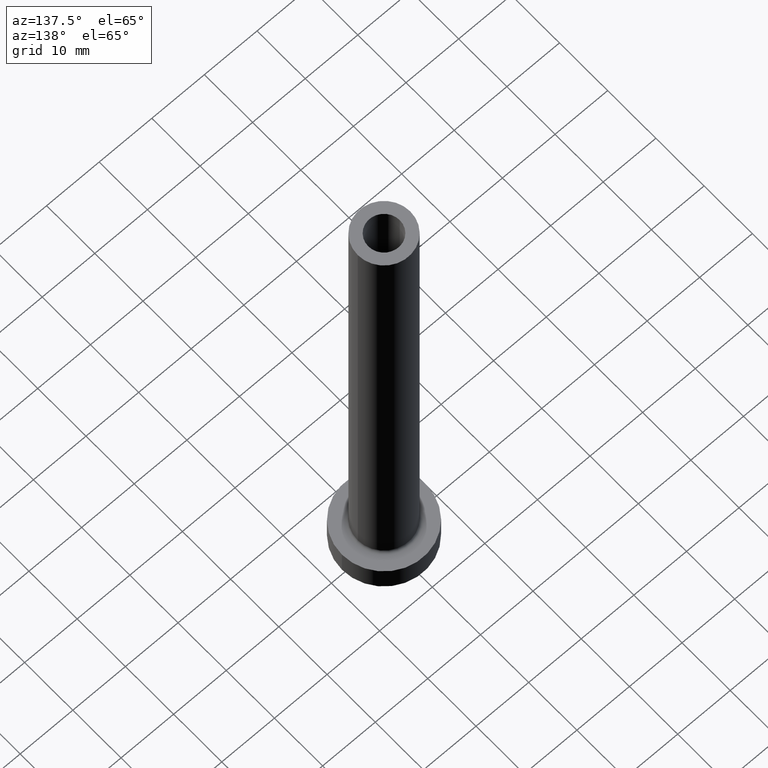
[diagram: clean part render]
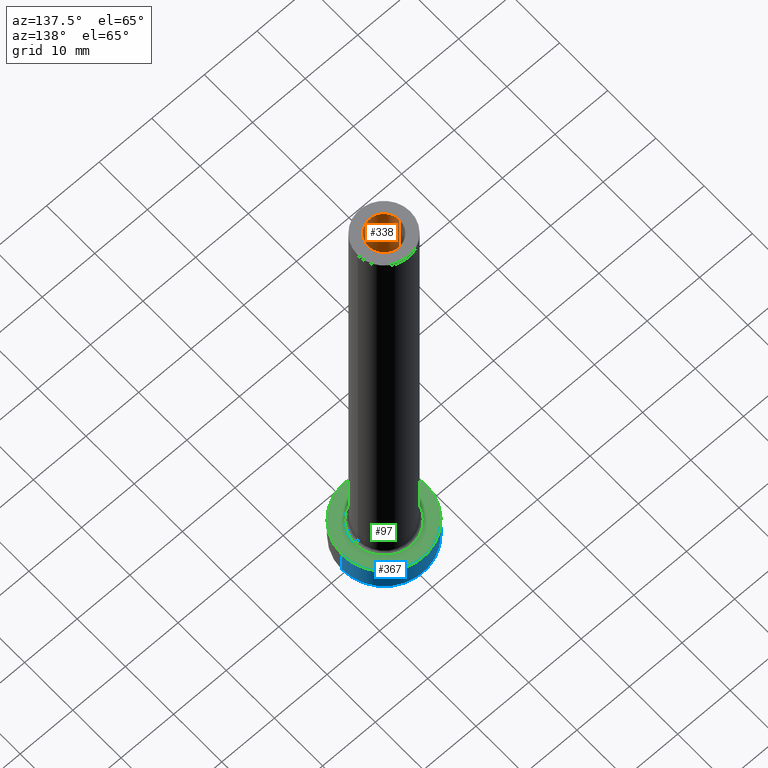
[diagram: same view with three faces highlighted in distinct colors, each labeled with its STEP entity id]
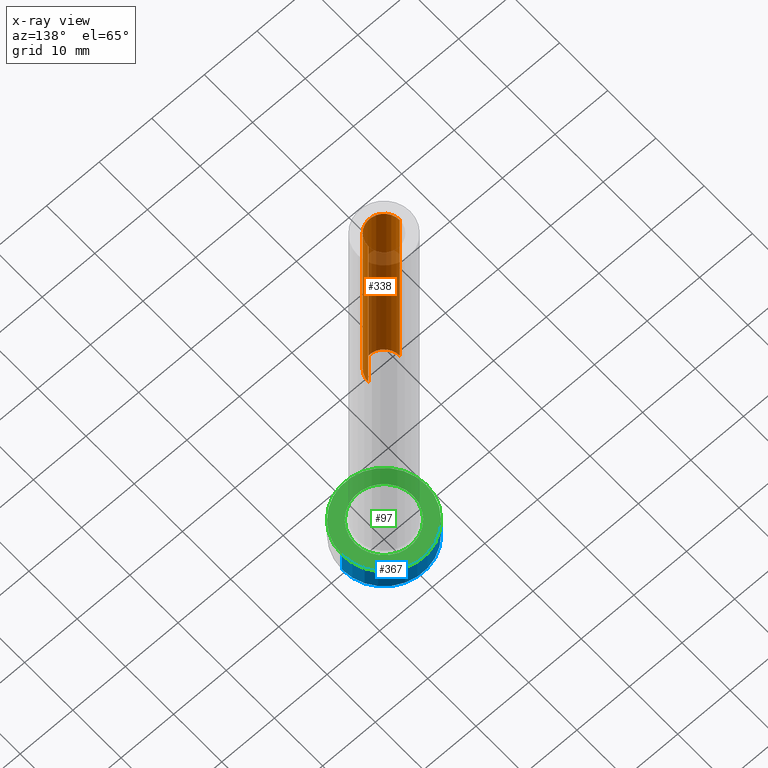
[diagram: x-ray of the same camera — body ghosted, the three highlighted faces saturated]
A machine part, auxiliary view with three faces highlighted in distinct colors.
The next image is the same camera in x-ray (body ghosted, the three faces saturated) — at least one of them is partly hidden behind the body in this view.
Their STEP definitions:

[orange] entity #338 — the highlighted cylindrical surface (edge-blend (fillet) strip) has radius 3 mm, axis along (0, 0, -1).
#8 = CIRCLE ( 'NONE', #15, 3.000000000000000444 ) ;
#14 = CARTESIAN_POINT ( 'NONE',  ( -3.000000000000000444, 0.000000000000000000, 100.0000000000000000 ) ) ;
#15 = AXIS2_PLACEMENT_3D ( 'NONE', #197, #325, #295 ) ;
#28 = VERTEX_POINT ( 'NONE', #244 ) ;
#56 = CARTESIAN_POINT ( 'NONE',  ( -3.000000000000000444, 0.000000000000000000, 100.0000000000000000 ) ) ;
#88 = LINE ( 'NONE', #56, #342 ) ;
#105 = VERTEX_POINT ( 'NONE', #14 ) ;
#106 = LINE ( 'NONE', #388, #198 ) ;
#107 = VERTEX_POINT ( 'NONE', #360 ) ;
#123 = DIRECTION ( 'NONE',  ( 0.000000000000000000, 0.000000000000000000, 1.000000000000000000 ) ) ;
#134 = FACE_OUTER_BOUND ( 'NONE', #233, .T. ) ;
#142 = ORIENTED_EDGE ( 'NONE', *, *, #419, .T. ) ;
#147 = EDGE_CURVE ( 'NONE', #28, #107, #8, .T. ) ;
#170 = VERTEX_POINT ( 'NONE', #366 ) ;
#181 = EDGE_CURVE ( 'NONE', #105, #170, #387, .T. ) ;
#194 = CARTESIAN_POINT ( 'NONE',  ( 0.000000000000000000, 0.000000000000000000, 100.0000000000000000 ) ) ;
#197 = CARTESIAN_POINT ( 'NONE',  ( 0.000000000000000000, 0.000000000000000000, 55.00000000000000711 ) ) ;
#198 = VECTOR ( 'NONE', #246, 1000.000000000000000 ) ;
#201 = CYLINDRICAL_SURFACE ( 'NONE', #309, 3.000000000000000444 ) ;
#203 = DIRECTION ( 'NONE',  ( 0.000000000000000000, 0.000000000000000000, -1.000000000000000000 ) ) ;
#204 = ORIENTED_EDGE ( 'NONE', *, *, #147, .F. ) ;
#223 = EDGE_CURVE ( 'NONE', #105, #28, #88, .T. ) ;
#233 = EDGE_LOOP ( 'NONE', ( #236, #142, #204, #355 ) ) ;
#236 = ORIENTED_EDGE ( 'NONE', *, *, #181, .T. ) ;
#244 = CARTESIAN_POINT ( 'NONE',  ( -3.000000000000000444, 0.000000000000000000, 55.00000000000000711 ) ) ;
#246 = DIRECTION ( 'NONE',  ( 0.000000000000000000, 0.000000000000000000, -1.000000000000000000 ) ) ;
#295 = DIRECTION ( 'NONE',  ( 1.000000000000000000, 0.000000000000000000, 0.000000000000000000 ) ) ;
#303 = CARTESIAN_POINT ( 'NONE',  ( 0.000000000000000000, 0.000000000000000000, 100.0000000000000000 ) ) ;
#309 = AXIS2_PLACEMENT_3D ( 'NONE', #303, #450, #448 ) ;
#325 = DIRECTION ( 'NONE',  ( 0.000000000000000000, 0.000000000000000000, 1.000000000000000000 ) ) ;
#338 = ADVANCED_FACE ( 'NONE', ( #134 ), #201, .F. ) ;
#342 = VECTOR ( 'NONE', #203, 1000.000000000000000 ) ;
#355 = ORIENTED_EDGE ( 'NONE', *, *, #223, .F. ) ;
#360 = CARTESIAN_POINT ( 'NONE',  ( 3.000000000000000444, 3.673940397442059868E-16, 55.00000000000000711 ) ) ;
#365 = DIRECTION ( 'NONE',  ( 1.000000000000000000, 0.000000000000000000, 0.000000000000000000 ) ) ;
#366 = CARTESIAN_POINT ( 'NONE',  ( 3.000000000000000444, 3.673940397442059868E-16, 100.0000000000000000 ) ) ;
#380 = AXIS2_PLACEMENT_3D ( 'NONE', #194, #123, #365 ) ;
#387 = CIRCLE ( 'NONE', #380, 3.000000000000000444 ) ;
#388 = CARTESIAN_POINT ( 'NONE',  ( 3.000000000000000444, 3.673940397442059868E-16, 100.0000000000000000 ) ) ;
#419 = EDGE_CURVE ( 'NONE', #170, #107, #106, .T. ) ;
#448 = DIRECTION ( 'NONE',  ( -1.000000000000000000, 0.000000000000000000, 0.000000000000000000 ) ) ;
#450 = DIRECTION ( 'NONE',  ( 0.000000000000000000, 0.000000000000000000, -1.000000000000000000 ) ) ;

[blue] entity #367 — the highlighted cylindrical surface (partial cylindrical patch) has radius 8 mm, axis along (-0, -0, -1).
#18 = EDGE_CURVE ( 'NONE', #321, #267, #390, .T. ) ;
#32 = CARTESIAN_POINT ( 'NONE',  ( 8.000000000000000000, 9.797174393178825657E-16, 0.000000000000000000 ) ) ;
#33 = CARTESIAN_POINT ( 'NONE',  ( 8.000000000000000000, 9.797174393178825657E-16, 5.000000000000000000 ) ) ;
#36 = EDGE_CURVE ( 'NONE', #247, #282, #455, .T. ) ;
#37 = CARTESIAN_POINT ( 'NONE',  ( 0.000000000000000000, 0.000000000000000000, 5.000000000000000000 ) ) ;
#39 = ORIENTED_EDGE ( 'NONE', *, *, #442, .T. ) ;
#41 = ORIENTED_EDGE ( 'NONE', *, *, #459, .F. ) ;
#66 = FACE_OUTER_BOUND ( 'NONE', #270, .T. ) ;
#71 = DIRECTION ( 'NONE',  ( -0.000000000000000000, -0.000000000000000000, -1.000000000000000000 ) ) ;
#72 = CARTESIAN_POINT ( 'NONE',  ( 0.000000000000000000, 0.000000000000000000, 0.000000000000000000 ) ) ;
#89 = CARTESIAN_POINT ( 'NONE',  ( -8.000000000000000000, 0.000000000000000000, 0.000000000000000000 ) ) ;
#101 = ORIENTED_EDGE ( 'NONE', *, *, #18, .T. ) ;
#109 = CARTESIAN_POINT ( 'NONE',  ( -8.000000000000000000, 0.000000000000000000, 5.000000000000000000 ) ) ;
#113 = LINE ( 'NONE', #33, #461 ) ;
#127 = CARTESIAN_POINT ( 'NONE',  ( -8.000000000000000000, 0.000000000000000000, 5.000000000000000000 ) ) ;
#130 = CYLINDRICAL_SURFACE ( 'NONE', #432, 8.000000000000000000 ) ;
#140 = DIRECTION ( 'NONE',  ( 1.000000000000000000, 0.000000000000000000, 0.000000000000000000 ) ) ;
#146 = DIRECTION ( 'NONE',  ( 0.000000000000000000, 0.000000000000000000, 1.000000000000000000 ) ) ;
#149 = DIRECTION ( 'NONE',  ( 0.000000000000000000, 0.000000000000000000, 1.000000000000000000 ) ) ;
#177 = AXIS2_PLACEMENT_3D ( 'NONE', #72, #149, #140 ) ;
#206 = CARTESIAN_POINT ( 'NONE',  ( 8.000000000000000000, 9.797174393178825657E-16, 5.000000000000000000 ) ) ;
#231 = ORIENTED_EDGE ( 'NONE', *, *, #36, .F. ) ;
#247 = VERTEX_POINT ( 'NONE', #206 ) ;
#248 = AXIS2_PLACEMENT_3D ( 'NONE', #37, #146, #287 ) ;
#264 = CARTESIAN_POINT ( 'NONE',  ( 0.000000000000000000, 0.000000000000000000, 5.000000000000000000 ) ) ;
#267 = VERTEX_POINT ( 'NONE', #89 ) ;
#270 = EDGE_LOOP ( 'NONE', ( #231, #39, #101, #41 ) ) ;
#281 = DIRECTION ( 'NONE',  ( -1.000000000000000000, 0.000000000000000000, 0.000000000000000000 ) ) ;
#282 = VERTEX_POINT ( 'NONE', #127 ) ;
#285 = VECTOR ( 'NONE', #71, 1000.000000000000000 ) ;
#287 = DIRECTION ( 'NONE',  ( 1.000000000000000000, 0.000000000000000000, 0.000000000000000000 ) ) ;
#321 = VERTEX_POINT ( 'NONE', #32 ) ;
#367 = ADVANCED_FACE ( 'NONE', ( #66 ), #130, .T. ) ;
#375 = DIRECTION ( 'NONE',  ( -0.000000000000000000, -0.000000000000000000, -1.000000000000000000 ) ) ;
#390 = CIRCLE ( 'NONE', #177, 8.000000000000000000 ) ;
#392 = LINE ( 'NONE', #109, #285 ) ;
#420 = DIRECTION ( 'NONE',  ( -0.000000000000000000, -0.000000000000000000, -1.000000000000000000 ) ) ;
#432 = AXIS2_PLACEMENT_3D ( 'NONE', #264, #375, #281 ) ;
#442 = EDGE_CURVE ( 'NONE', #247, #321, #113, .T. ) ;
#455 = CIRCLE ( 'NONE', #248, 8.000000000000000000 ) ;
#459 = EDGE_CURVE ( 'NONE', #282, #267, #392, .T. ) ;
#461 = VECTOR ( 'NONE', #420, 1000.000000000000000 ) ;

[green] entity #97 — the highlighted planar face has unit normal (0, 0, 1).
#26 = ORIENTED_EDGE ( 'NONE', *, *, #195, .T. ) ;
#35 = AXIS2_PLACEMENT_3D ( 'NONE', #180, #429, #139 ) ;
#36 = EDGE_CURVE ( 'NONE', #247, #282, #455, .T. ) ;
#37 = CARTESIAN_POINT ( 'NONE',  ( 0.000000000000000000, 0.000000000000000000, 5.000000000000000000 ) ) ;
#49 = PLANE ( 'NONE',  #418 ) ;
#50 = EDGE_CURVE ( 'NONE', #174, #210, #111, .T. ) ;
#80 = DIRECTION ( 'NONE',  ( 0.000000000000000000, 0.000000000000000000, 1.000000000000000000 ) ) ;
#84 = CARTESIAN_POINT ( 'NONE',  ( 0.000000000000000000, 0.000000000000000000, 5.000000000000000000 ) ) ;
#97 = ADVANCED_FACE ( 'NONE', ( #436, #222 ), #49, .T. ) ;
#108 = AXIS2_PLACEMENT_3D ( 'NONE', #362, #328, #326 ) ;
#110 = CARTESIAN_POINT ( 'NONE',  ( 0.000000000000000000, 0.000000000000000000, 5.000000000000000000 ) ) ;
#111 = CIRCLE ( 'NONE', #327, 5.500000000000000000 ) ;
#115 = CARTESIAN_POINT ( 'NONE',  ( 5.500000000000000000, 0.000000000000000000, 5.000000000000002665 ) ) ;
#127 = CARTESIAN_POINT ( 'NONE',  ( -8.000000000000000000, 0.000000000000000000, 5.000000000000000000 ) ) ;
#139 = DIRECTION ( 'NONE',  ( 1.000000000000000000, 0.000000000000000000, 0.000000000000000000 ) ) ;
#146 = DIRECTION ( 'NONE',  ( 0.000000000000000000, 0.000000000000000000, 1.000000000000000000 ) ) ;
#174 = VERTEX_POINT ( 'NONE', #115 ) ;
#176 = ORIENTED_EDGE ( 'NONE', *, *, #50, .T. ) ;
#180 = CARTESIAN_POINT ( 'NONE',  ( 0.000000000000000000, 0.000000000000000000, 5.000000000000000000 ) ) ;
#195 = EDGE_CURVE ( 'NONE', #210, #174, #444, .T. ) ;
#202 = EDGE_LOOP ( 'NONE', ( #456, #289 ) ) ;
#206 = CARTESIAN_POINT ( 'NONE',  ( 8.000000000000000000, 9.797174393178825657E-16, 5.000000000000000000 ) ) ;
#210 = VERTEX_POINT ( 'NONE', #402 ) ;
#218 = DIRECTION ( 'NONE',  ( 1.000000000000000000, 0.000000000000000000, -0.000000000000000000 ) ) ;
#222 = FACE_OUTER_BOUND ( 'NONE', #202, .T. ) ;
#228 = CIRCLE ( 'NONE', #35, 8.000000000000000000 ) ;
#247 = VERTEX_POINT ( 'NONE', #206 ) ;
#248 = AXIS2_PLACEMENT_3D ( 'NONE', #37, #146, #287 ) ;
#282 = VERTEX_POINT ( 'NONE', #127 ) ;
#287 = DIRECTION ( 'NONE',  ( 1.000000000000000000, 0.000000000000000000, 0.000000000000000000 ) ) ;
#289 = ORIENTED_EDGE ( 'NONE', *, *, #36, .T. ) ;
#326 = DIRECTION ( 'NONE',  ( 1.000000000000000000, 0.000000000000000000, 0.000000000000000000 ) ) ;
#327 = AXIS2_PLACEMENT_3D ( 'NONE', #110, #393, #430 ) ;
#328 = DIRECTION ( 'NONE',  ( -0.000000000000000000, -0.000000000000000000, -1.000000000000000000 ) ) ;
#362 = CARTESIAN_POINT ( 'NONE',  ( 0.000000000000000000, 0.000000000000000000, 5.000000000000000000 ) ) ;
#393 = DIRECTION ( 'NONE',  ( -0.000000000000000000, -0.000000000000000000, -1.000000000000000000 ) ) ;
#402 = CARTESIAN_POINT ( 'NONE',  ( -5.500000000000000000, 6.735557395310442023E-16, 5.000000000000002665 ) ) ;
#406 = EDGE_CURVE ( 'NONE', #282, #247, #228, .T. ) ;
#418 = AXIS2_PLACEMENT_3D ( 'NONE', #84, #80, #218 ) ;
#423 = EDGE_LOOP ( 'NONE', ( #176, #26 ) ) ;
#429 = DIRECTION ( 'NONE',  ( 0.000000000000000000, 0.000000000000000000, 1.000000000000000000 ) ) ;
#430 = DIRECTION ( 'NONE',  ( 1.000000000000000000, 0.000000000000000000, 0.000000000000000000 ) ) ;
#436 = FACE_BOUND ( 'NONE', #423, .T. ) ;
#444 = CIRCLE ( 'NONE', #108, 5.500000000000000000 ) ;
#455 = CIRCLE ( 'NONE', #248, 8.000000000000000000 ) ;
#456 = ORIENTED_EDGE ( 'NONE', *, *, #406, .T. ) ;